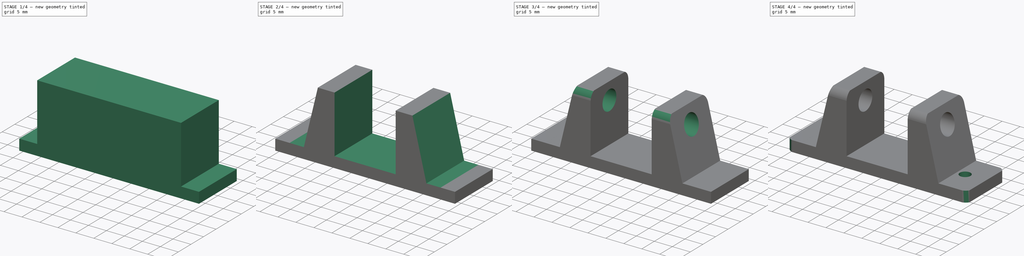
[diagram: build sequence overview — one tinted view per stage of 4, left to right]
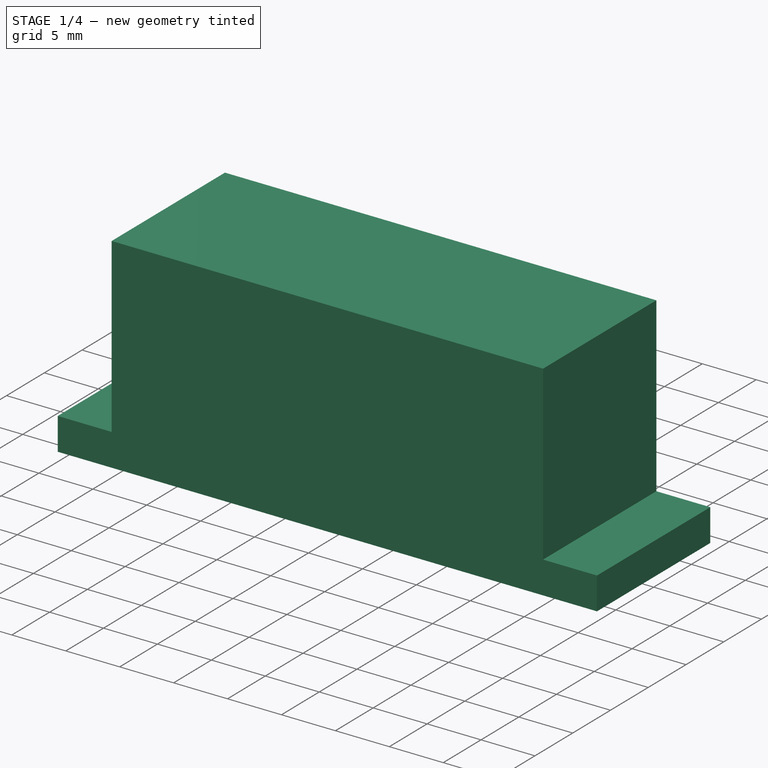
[diagram: stage 1 of 4 — iso view after this stage's code; geometry added in this stage tinted green]
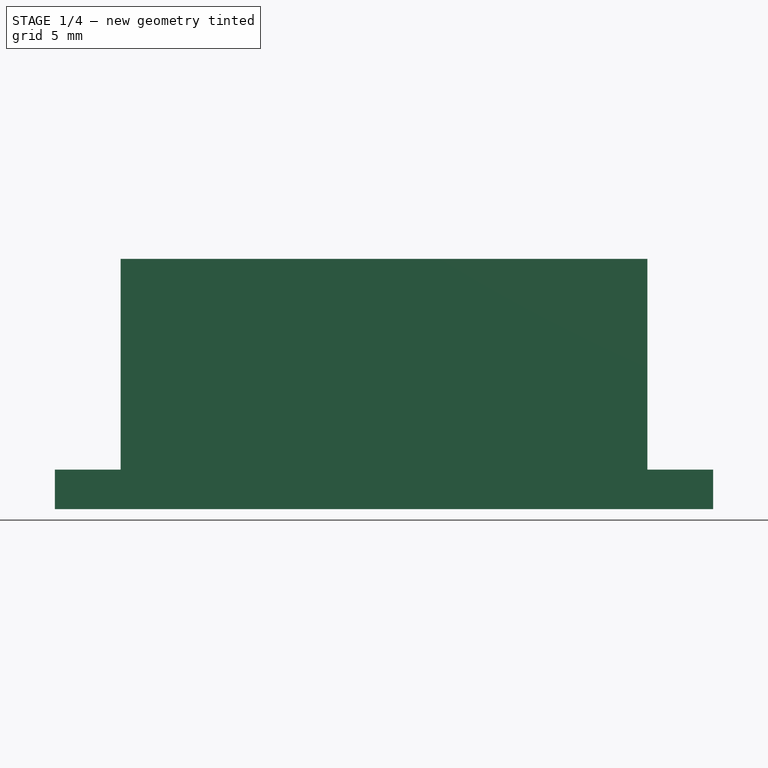
[diagram: stage 1 of 4 — front view after this stage's code; geometry added in this stage tinted green]
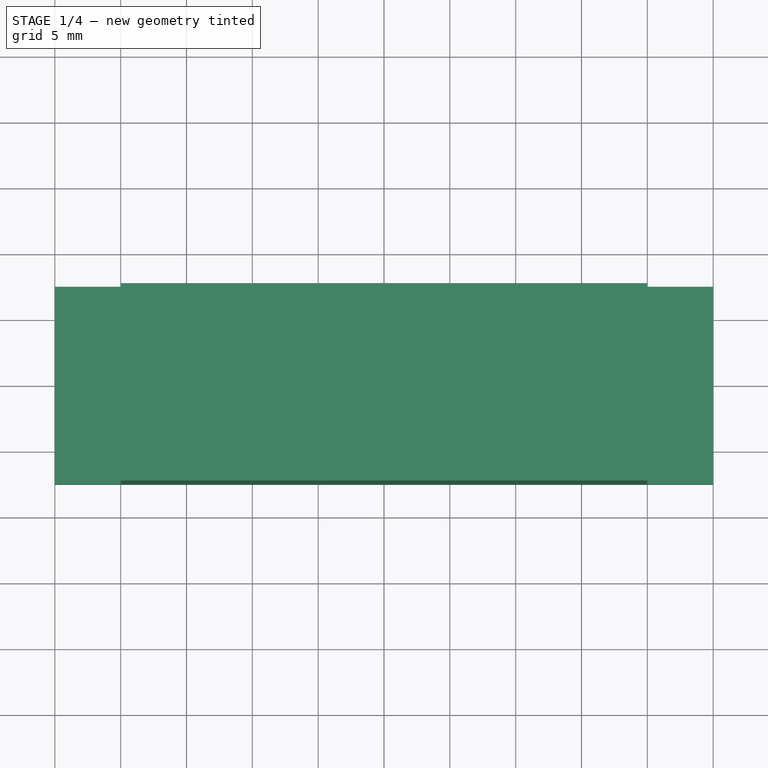
[diagram: stage 1 of 4 — top view after this stage's code; geometry added in this stage tinted green]
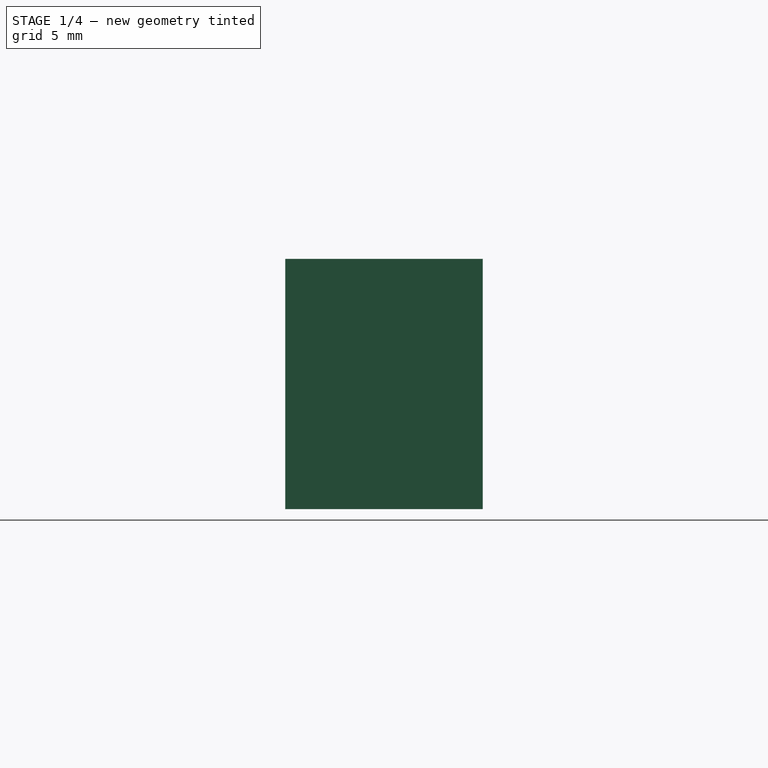
[diagram: stage 1 of 4 — right view after this stage's code; geometry added in this stage tinted green]
FCSTD DOCUMENT  (FreeCAD 1.0R39109 (Git))
Label: Soporte polea
License: All rights reserved
LicenseURL: https://en.wikipedia.org/wiki/All_rights_reserved
objects: Sketcher::SketchObject×11, PartDesign::Pocket×5, PartDesign::Pad×2, PartDesign::Hole×2, PartDesign::Body×1
note: 50 computed .brp shape members not serialized (recipe doc carries the construction recipe); baked Part::Feature solids carry a one-line shape summary decoded from their .brp

FEATURE [Sketcher::SketchObject] Sketch
  ArcFitTolerance = 1e-06
  AttachmentSupport = -> [XY_Plane]
  FullyConstrained = true
  MakeInternals = false
  MapMode = 5
  sketch-geometry (5):
    g0: LineSegment StartX=-25 StartY=-7.5 StartZ=0 EndX=25 EndY=-7.5 EndZ=0
    g1: LineSegment StartX=25 StartY=-7.5 StartZ=0 EndX=25 EndY=7.5 EndZ=0
    g2: LineSegment StartX=25 StartY=7.5 StartZ=0 EndX=-25 EndY=7.5 EndZ=0
    g3: LineSegment StartX=-25 StartY=7.5 StartZ=0 EndX=-25 EndY=-7.5 EndZ=0
    g4: GeomPoint [constr] X=0 Y=0 Z=0
  constraints (12):
    c: Coincident(g0,g1)
    c: Coincident(g1,g2)
    c: Coincident(g2,g3)
    c: Coincident(g3,g0)
    c: Horizontal(g0)
    c: Horizontal(g2)
    c: Vertical(g1)
    c: Vertical(g3)
    c: Symmetric(g2,g0,g4)
    c: Distance(g1,g3) = 50
    c: Distance(g0,g2) = 15
    c: Coincident(g4,g-1)
FEATURE [PartDesign::Pad] Pad
  Direction = (0,0,1)
  Length = 3
  Length2 = 10
  Profile = -> Sketch
  ReferenceAxis = -> Sketch [N_Axis]
  Refine = true
  Suppressed = false
  Type = 0
FEATURE [Sketcher::SketchObject] Sketch001
  ArcFitTolerance = 1e-06
  AttachmentSupport = -> [Pad]
  FullyConstrained = true
  MakeInternals = false
  MapMode = 5
  Placement = pos=(0,0,3) rot=(0,0,1;0rad)
  sketch-geometry (5):
    g0: LineSegment StartX=-20 StartY=-7.5 StartZ=0 EndX=20 EndY=-7.5 EndZ=0
    g1: LineSegment StartX=20 StartY=-7.5 StartZ=0 EndX=20 EndY=7.5 EndZ=0
    g2: LineSegment StartX=20 StartY=7.5 StartZ=0 EndX=-20 EndY=7.5 EndZ=0
    g3: LineSegment StartX=-20 StartY=7.5 StartZ=0 EndX=-20 EndY=-7.5 EndZ=0
    g4: GeomPoint [constr] X=0 Y=0 Z=0
  constraints (12):
    c: Coincident(g0,g1)
    c: Coincident(g1,g2)
    c: Coincident(g2,g3)
    c: Coincident(g3,g0)
    c: Horizontal(g0)
    c: Horizontal(g2)
    c: Vertical(g1)
    c: Vertical(g3)
    c: Symmetric(g2,g0,g4)
    c: Distance(g1,g3) = 40
    c: Distance(g0,g2) = 15
    c: Coincident(g4,g-1)
FEATURE [PartDesign::Pad] Pad001
  BaseFeature = -> Pad
  Direction = (0,0,1)
  Length = 16
  Length2 = 10
  Profile = -> Sketch001
  ReferenceAxis = -> Sketch001 [N_Axis]
  Refine = true
  Suppressed = false
  Type = 0
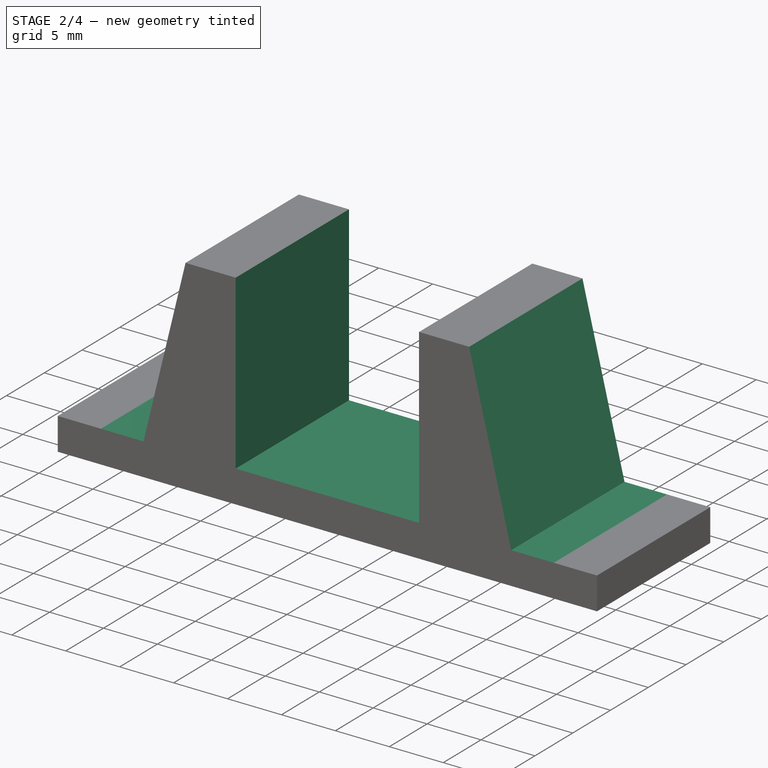
[diagram: stage 2 of 4 — iso view after this stage's code; geometry added in this stage tinted green]
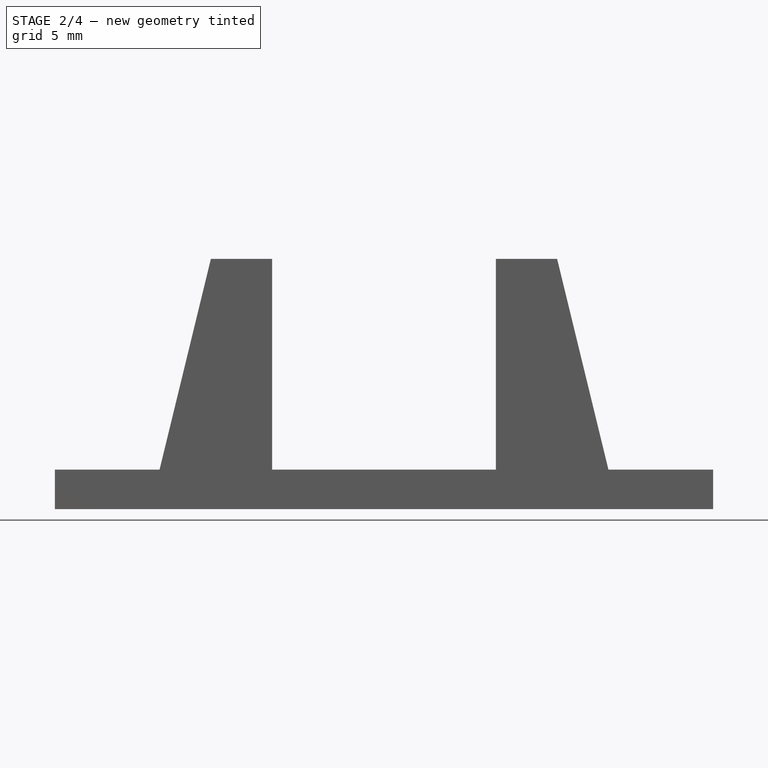
[diagram: stage 2 of 4 — front view after this stage's code; geometry added in this stage tinted green]
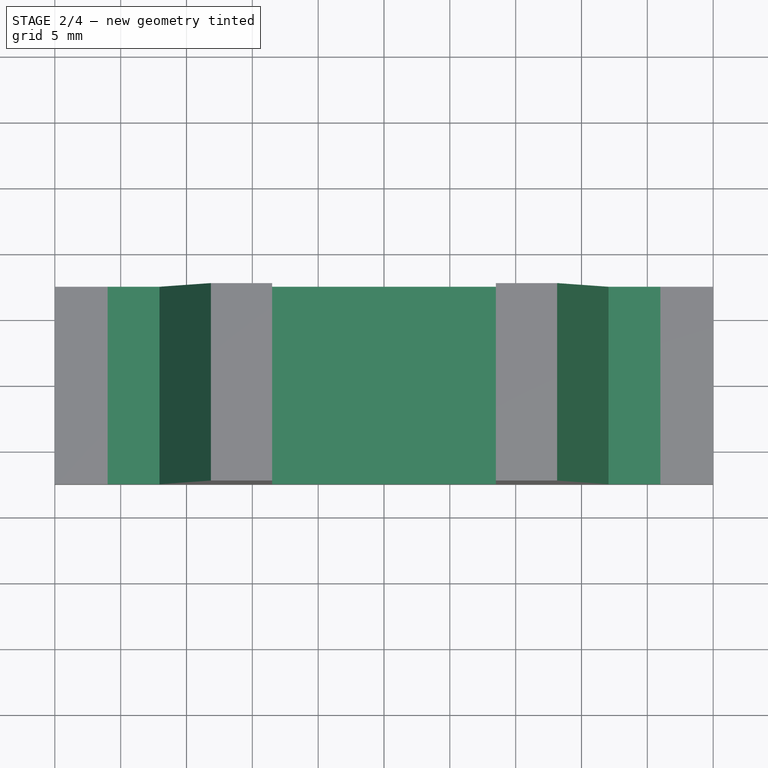
[diagram: stage 2 of 4 — top view after this stage's code; geometry added in this stage tinted green]
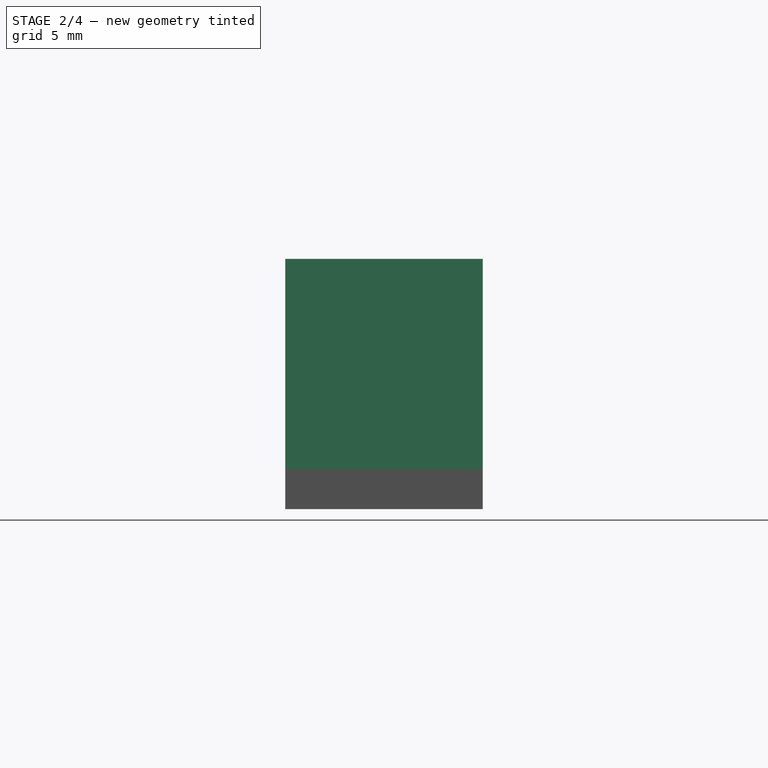
[diagram: stage 2 of 4 — right view after this stage's code; geometry added in this stage tinted green]
FEATURE [Sketcher::SketchObject] Sketch002
  ArcFitTolerance = 1e-06
  AttachmentSupport = -> [Pad001]
  FullyConstrained = false
  MakeInternals = false
  MapMode = 5
  Placement = pos=(0,-7.5,0) rot=(1,0,0;1.5708rad)
  sketch-geometry (8):
    g0: LineSegment StartX=-17.0463 StartY=2.99842 StartZ=0 EndX=-13.1473 EndY=19.0072 EndZ=0
    g1: LineSegment StartX=-13.1473 StartY=19.0072 StartZ=0 EndX=-20.9911 EndY=19.3283 EndZ=0
    g2: LineSegment StartX=-20.9911 StartY=19.3283 StartZ=0 EndX=-20.9911 EndY=2.99842 EndZ=0
    g3: LineSegment StartX=-20.9911 StartY=2.99842 StartZ=0 EndX=-17.0463 EndY=2.99842 EndZ=0
    g4: LineSegment StartX=17.0463 StartY=2.99842 StartZ=0 EndX=13.1473 EndY=19.0072 EndZ=0
    g5: LineSegment StartX=13.1473 StartY=19.0072 StartZ=0 EndX=20.9911 EndY=19.3283 EndZ=0
    g6: LineSegment StartX=20.9911 StartY=19.3283 StartZ=0 EndX=20.9911 EndY=2.99842 EndZ=0
    g7: LineSegment StartX=20.9911 StartY=2.99842 StartZ=0 EndX=17.0463 EndY=2.99842 EndZ=0
  constraints (12):
    c: Coincident(g1,g0)
    c: Coincident(g2,g1)
    c: Vertical(g2)
    c: Coincident(g3,g2)
    c: Coincident(g3,g0)
    c: Horizontal(g3)
    c: Coincident(g5,g4)
    c: Coincident(g6,g5)
    c: Vertical(g6)
    c: Coincident(g7,g6)
    c: Coincident(g7,g4)
    c: Horizontal(g7)
FEATURE [Sketcher::SketchObject] Sketch004
  ArcFitTolerance = 1e-06
  FullyConstrained = false
  MakeInternals = false
  MapMode = 5
  Placement = pos=(-8.5,0,0) rot=(0.57735,0.57735,0.57735;2.0944rad)
  sketch-geometry (1):
    g0: Circle CenterX=0 CenterY=14.2311 CenterZ=0 NormalX=0 NormalY=0 NormalZ=1 AngleXU=0 Radius=2.65
  constraints (2):
    c: Diameter(g0) = 5.3
    c: PointOnObject(g0,g-2)
FEATURE [Sketcher::SketchObject] Sketch005
  ArcFitTolerance = 1e-06
  FullyConstrained = false
  MakeInternals = false
  MapMode = 5
  Placement = pos=(8.5,0,0) rot=(0.57735,-0.57735,-0.57735;2.0944rad)
  sketch-geometry (8):
    g0: ArcOfCircle CenterX=-4.9741 CenterY=16.7791 CenterZ=0 NormalX=0 NormalY=0 NormalZ=1 AngleXU=0 Radius=2.50683 StartAngle=1.738 EndAngle=3.05551
    g1: LineSegment StartX=-7.47165 StartY=16.9946 StartZ=0 EndX=-7.67428 EndY=16.9397 EndZ=0
    g2: LineSegment StartX=-7.67428 StartY=16.9397 StartZ=0 EndX=-7.67428 EndY=19.251 EndZ=0
    g3: LineSegment StartX=-5.39131 StartY=19.251 StartZ=0 EndX=-7.67428 EndY=19.251 EndZ=0
    g4: ArcOfCircle CenterX=4.9741 CenterY=16.7791 CenterZ=0 NormalX=0 NormalY=0 NormalZ=1 AngleXU=0 Radius=2.50684 StartAngle=0.0860784 EndAngle=1.40359
    g5: LineSegment StartX=7.47165 StartY=16.9946 StartZ=0 EndX=7.67428 EndY=16.9397 EndZ=0
    g6: LineSegment StartX=7.67428 StartY=16.9397 StartZ=0 EndX=7.67428 EndY=19.251 EndZ=0
    g7: LineSegment StartX=5.39131 StartY=19.251 StartZ=0 EndX=7.67428 EndY=19.251 EndZ=0
  constraints (12):
    c: Coincident(g1,g0)
    c: Coincident(g2,g1)
    c: Vertical(g2)
    c: Coincident(g3,g0)
    c: Coincident(g3,g2)
    c: Horizontal(g3)
    c: Coincident(g5,g4)
    c: Coincident(g6,g5)
    c: Vertical(g6)
    c: Coincident(g7,g4)
    c: Coincident(g7,g6)
    c: Horizontal(g7)
FEATURE [Sketcher::SketchObject] Sketch006
  ArcFitTolerance = 1e-06
  FullyConstrained = false
  MakeInternals = false
  MapMode = 5
  Placement = pos=(0,0,3) rot=(0,0,1;0rad)
  sketch-geometry (12):
    g0: ArcOfCircle CenterX=-22.8745 CenterY=5.19512 CenterZ=0 NormalX=0 NormalY=0 NormalZ=1 AngleXU=0 Radius=2.48469 StartAngle=1.66986 EndAngle=2.84916
    g1: LineSegment StartX=-25.2537 StartY=5.91142 StartZ=0 EndX=-25.2537 EndY=7.71409 EndZ=0
    g2: LineSegment StartX=-25.2537 StartY=7.71409 StartZ=0 EndX=-23.1203 EndY=7.66762 EndZ=0
    g3: ArcOfCircle CenterX=-22.9188 CenterY=-5.05194 CenterZ=0 NormalX=0 NormalY=0 NormalZ=1 AngleXU=0 Radius=2.56585 StartAngle=3.42755 EndAngle=4.58181
    g4: LineSegment StartX=-25.3805 StartY=-5.7757 StartZ=0 EndX=-25.3805 EndY=-7.58431 EndZ=0
    g5: LineSegment StartX=-25.3805 StartY=-7.58431 StartZ=0 EndX=-23.2529 EndY=-7.59594 EndZ=0
    g6: ArcOfCircle CenterX=22.8745 CenterY=5.19512 CenterZ=0 NormalX=0 NormalY=0 NormalZ=1 AngleXU=0 Radius=2.48469 StartAngle=0.292436 EndAngle=1.47174
    g7: LineSegment StartX=25.2537 StartY=5.91142 StartZ=0 EndX=25.2537 EndY=7.71409 EndZ=0
    g8: LineSegment StartX=25.2537 StartY=7.71409 StartZ=0 EndX=23.1203 EndY=7.66762 EndZ=0
    g9: ArcOfCircle CenterX=22.9188 CenterY=-5.05194 CenterZ=0 NormalX=0 NormalY=0 NormalZ=1 AngleXU=0 Radius=2.56585 StartAngle=4.84297 EndAngle=5.99723
    g10: LineSegment StartX=25.3805 StartY=-5.7757 StartZ=0 EndX=25.3805 EndY=-7.58431 EndZ=0
    g11: LineSegment StartX=25.3805 StartY=-7.58431 StartZ=0 EndX=23.2529 EndY=-7.59594 EndZ=0
  constraints (16):
    c: Coincident(g1,g0)
    c: Vertical(g1)
    c: Coincident(g2,g1)
    c: Coincident(g2,g0)
    c: Coincident(g4,g3)
    c: Vertical(g4)
    c: Coincident(g5,g4)
    c: Coincident(g5,g3)
    c: Coincident(g7,g6)
    c: Vertical(g7)
    c: Coincident(g8,g7)
    c: Coincident(g8,g6)
    c: Coincident(g10,g9)
    c: Vertical(g10)
    c: Coincident(g11,g10)
    c: Coincident(g11,g9)
FEATURE [Sketcher::SketchObject] Sketch007
  ArcFitTolerance = 1e-06
  FullyConstrained = false
  MakeInternals = false
  MapMode = 5
  Placement = pos=(0,0,3) rot=(0,0,1;0rad)
  sketch-geometry (2):
    g0: Circle CenterX=-19.2322 CenterY=0 CenterZ=0 NormalX=0 NormalY=0 NormalZ=1 AngleXU=0 Radius=1.5
    g1: Circle CenterX=19.2322 CenterY=0 CenterZ=0 NormalX=0 NormalY=0 NormalZ=1 AngleXU=0 Radius=1.5
  constraints (3):
    c: Diameter(g0) = 3
    c: PointOnObject(g0,g-1)
    c: Diameter(g1) = 3
FEATURE [Sketcher::SketchObject] Sketch008
  ArcFitTolerance = 1e-06
  FullyConstrained = false
  MakeInternals = false
  MapMode = 5
  Placement = pos=(0,0,13) rot=(0,0,1;0rad)
  sketch-geometry (2):
    g0: Circle CenterX=-11.2701 CenterY=0 CenterZ=0 NormalX=0 NormalY=0 NormalZ=1 AngleXU=0 Radius=1.5
    g1: Circle CenterX=11.3804 CenterY=0 CenterZ=0 NormalX=0 NormalY=0 NormalZ=1 AngleXU=0 Radius=1.5
  constraints (4):
    c: Diameter(g0) = 3
    c: PointOnObject(g0,g-1)
    c: Diameter(g1) = 3
    c: PointOnObject(g1,g-1)
FEATURE [Sketcher::SketchObject] Sketch009
  ArcFitTolerance = 1e-06
  FullyConstrained = true
  MakeInternals = false
  MapMode = 5
  Placement = pos=(0,-7.5,0) rot=(1,0,0;1.5708rad)
FEATURE [PartDesign::Pocket] Pocket
  BaseFeature = -> Pad001
  Direction = (0,1,-2e-16)
  Length = 30
  Length2 = 5
  Profile = -> Sketch002
  ReferenceAxis = -> Sketch002 [N_Axis]
  Refine = true
  Suppressed = false
  Type = 0
FEATURE [Sketcher::SketchObject] Sketch010
  ArcFitTolerance = 1e-06
  AttachmentSupport = -> [Pocket]
  FullyConstrained = true
  MakeInternals = false
  MapMode = 5
  Placement = pos=(0,0,19) rot=(0,0,1;0rad)
FEATURE [Sketcher::SketchObject] Sketch011
  ArcFitTolerance = 1e-06
  AttachmentSupport = -> [Pocket]
  FullyConstrained = true
  MakeInternals = false
  MapMode = 5
  Placement = pos=(0,0,19) rot=(0,0,1;0rad)
  sketch-geometry (5):
    g0: LineSegment StartX=-8.5 StartY=-7.5 StartZ=0 EndX=8.5 EndY=-7.5 EndZ=0
    g1: LineSegment StartX=8.5 StartY=-7.5 StartZ=0 EndX=8.5 EndY=7.5 EndZ=0
    g2: LineSegment StartX=8.5 StartY=7.5 StartZ=0 EndX=-8.5 EndY=7.5 EndZ=0
    g3: LineSegment StartX=-8.5 StartY=7.5 StartZ=0 EndX=-8.5 EndY=-7.5 EndZ=0
    g4: GeomPoint [constr] X=0 Y=0 Z=0
  constraints (12):
    c: Coincident(g0,g1)
    c: Coincident(g1,g2)
    c: Coincident(g2,g3)
    c: Coincident(g3,g0)
    c: Horizontal(g0)
    c: Horizontal(g2)
    c: Vertical(g1)
    c: Vertical(g3)
    c: Symmetric(g2,g0,g4)
    c: Distance(g1,g3) = 17
    c: Distance(g0,g2) = 15
    c: Coincident(g4,g-1)
FEATURE [PartDesign::Pocket] Pocket001
  BaseFeature = -> Pocket
  Direction = (0,0,-1)
  Length = 16
  Length2 = 5
  Profile = -> Sketch011
  ReferenceAxis = -> Sketch011 [N_Axis]
  Refine = true
  Suppressed = false
  Type = 0
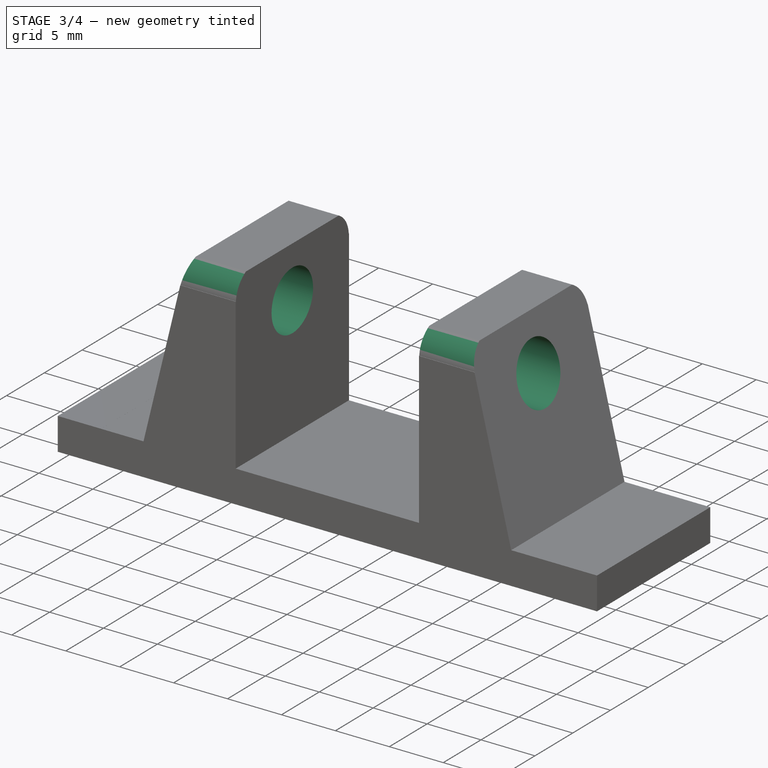
[diagram: stage 3 of 4 — iso view after this stage's code; geometry added in this stage tinted green]
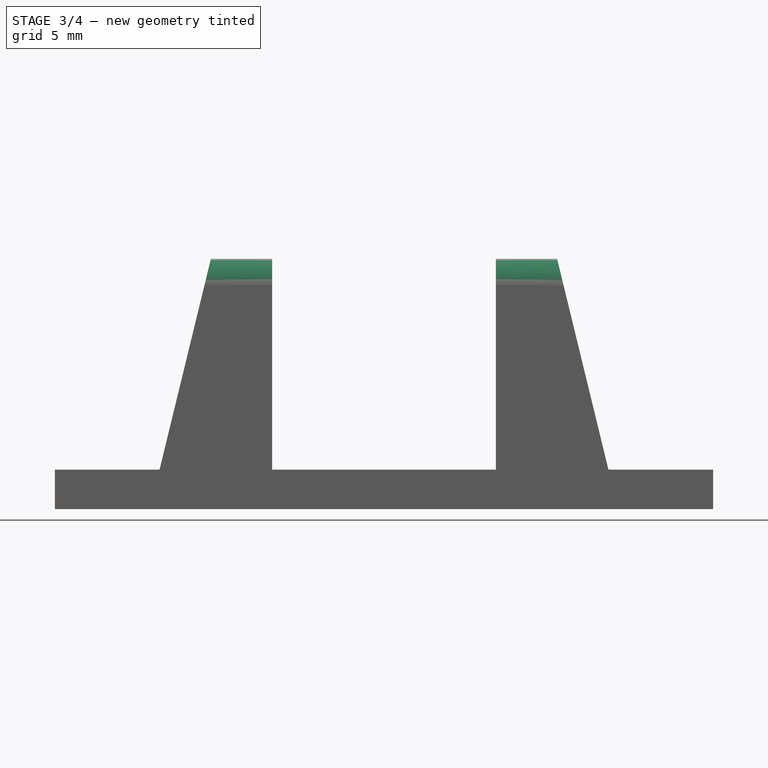
[diagram: stage 3 of 4 — front view after this stage's code; geometry added in this stage tinted green]
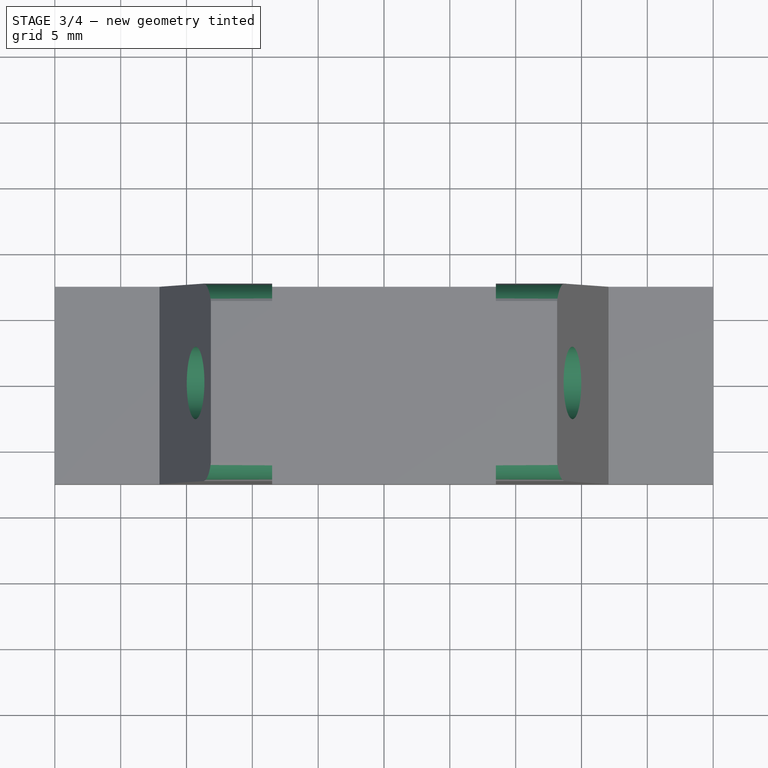
[diagram: stage 3 of 4 — top view after this stage's code; geometry added in this stage tinted green]
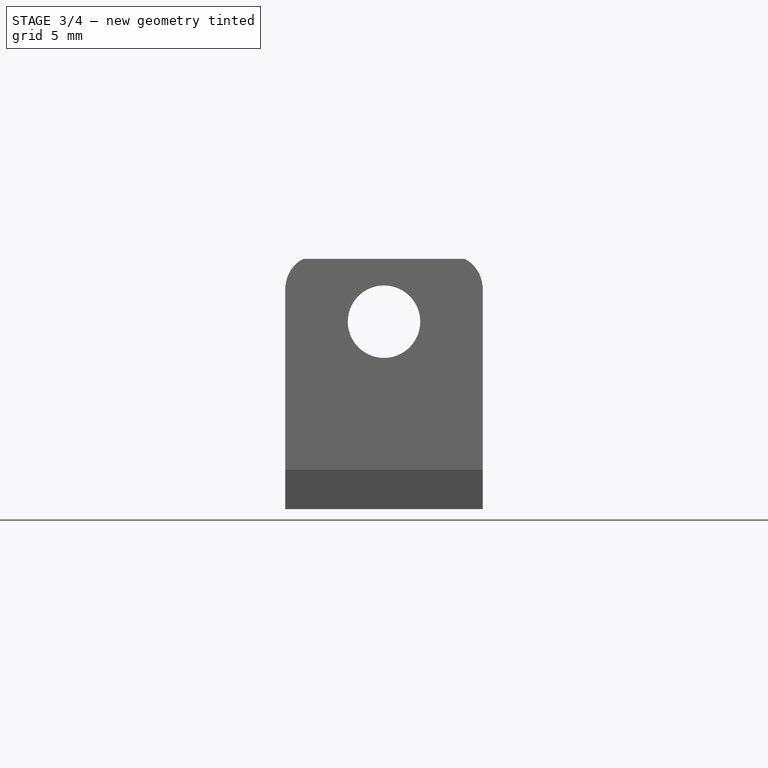
[diagram: stage 3 of 4 — right view after this stage's code; geometry added in this stage tinted green]
FEATURE [PartDesign::Hole] Hole
  BaseFeature = -> Pocket001
  CustomThreadClearance = 0
  Depth = 25
  DepthType = 0
  Diameter = 5.5
  DrillForDepth = false
  DrillPoint = 1
  DrillPointAngle = 118
  HoleCutCountersinkAngle = 90
  HoleCutCustomValues = false
  HoleCutDepth = 0
  HoleCutDiameter = 6.1
  HoleCutType = 0
  ModelThread = false
  Profile = -> Sketch004
  Refine = true
  Suppressed = false
  Tapered = false
  TaperedAngle = 90
  ThreadClass = 0
  ThreadDepth = 25
  ThreadDepthType = 0
  ThreadDirection = 0
  ThreadFit = 0
  ThreadSize = 13
  ThreadType = 1
  Threaded = false
  UseCustomThreadClearance = false
FEATURE [PartDesign::Hole] Hole001
  BaseFeature = -> Hole
  CustomThreadClearance = 0
  Depth = 25
  DepthType = 0
  Diameter = 5.5
  DrillForDepth = false
  DrillPoint = 1
  DrillPointAngle = 118
  HoleCutCountersinkAngle = 90
  HoleCutCustomValues = false
  HoleCutDepth = 0
  HoleCutDiameter = 6.1
  HoleCutType = 0
  ModelThread = false
  Profile = -> Sketch004
  Refine = true
  Reversed = true
  Suppressed = false
  Tapered = false
  TaperedAngle = 90
  ThreadClass = 0
  ThreadDepth = 25
  ThreadDepthType = 0
  ThreadDirection = 0
  ThreadFit = 0
  ThreadSize = 13
  ThreadType = 1
  Threaded = false
  UseCustomThreadClearance = false
FEATURE [PartDesign::Pocket] Pocket002
  BaseFeature = -> Hole001
  Direction = (1,-1e-16,1e-16)
  Length = 70
  Length2 = 5
  Midplane = true
  Profile = -> Sketch005
  ReferenceAxis = -> Sketch005 [N_Axis]
  Refine = true
  Suppressed = false
  Type = 0
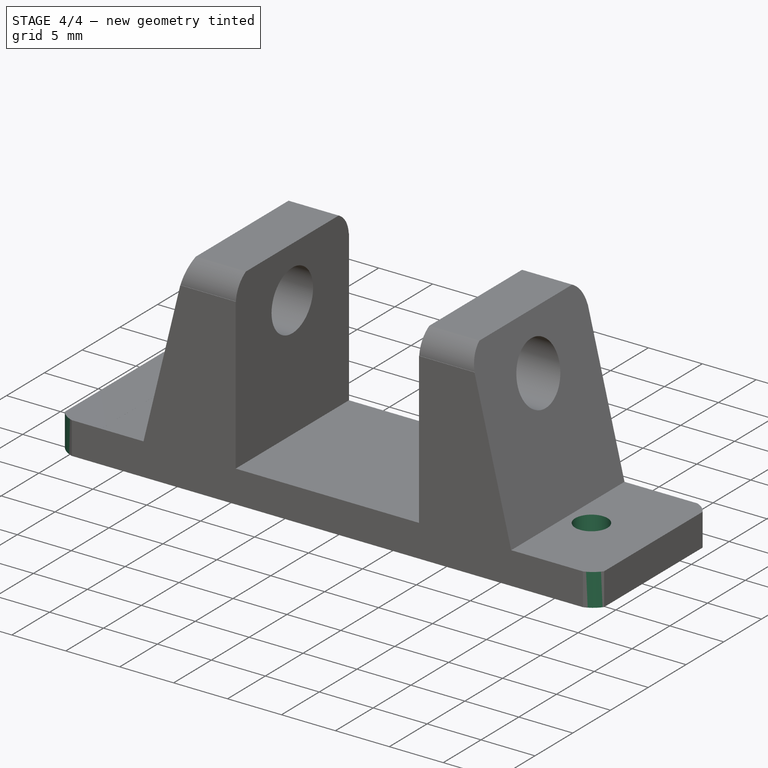
[diagram: stage 4 of 4 — iso view after this stage's code; geometry added in this stage tinted green]
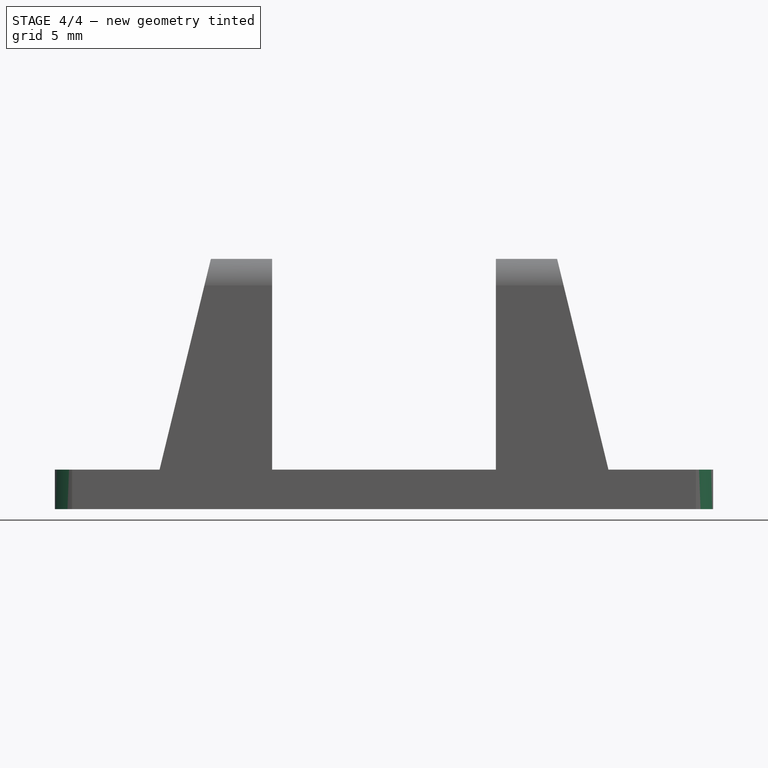
[diagram: stage 4 of 4 — front view after this stage's code; geometry added in this stage tinted green]
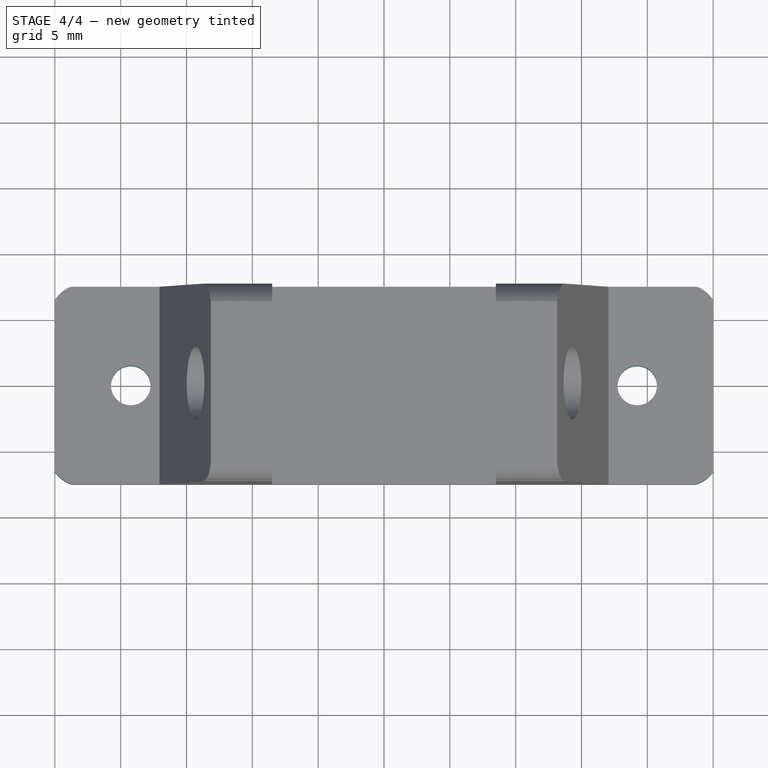
[diagram: stage 4 of 4 — top view after this stage's code; geometry added in this stage tinted green]
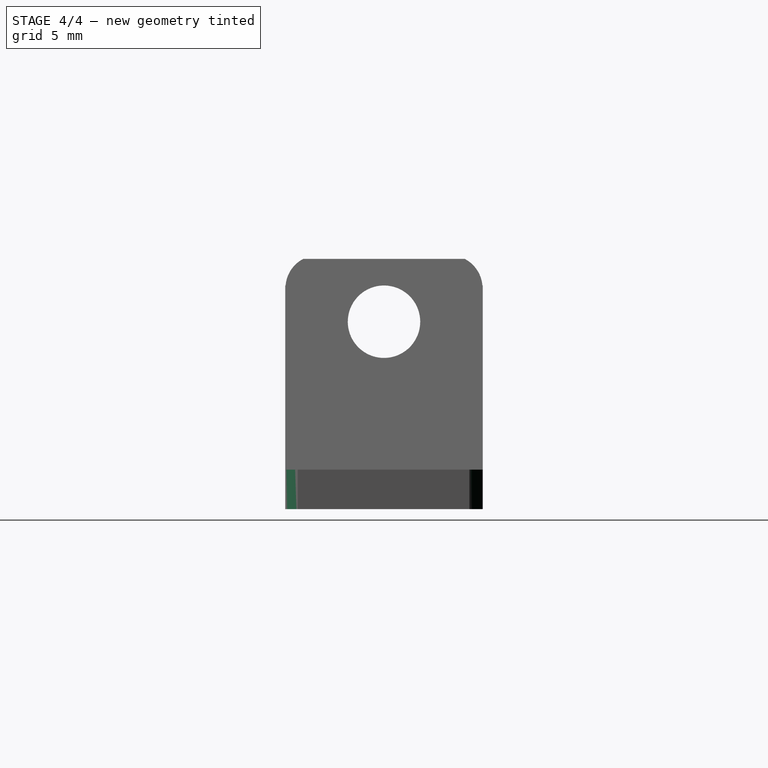
[diagram: stage 4 of 4 — right view after this stage's code; geometry added in this stage tinted green]
FEATURE [PartDesign::Pocket] Pocket003
  BaseFeature = -> Pocket002
  Direction = (0,0,-1)
  Length = 5
  Length2 = 5
  Profile = -> Sketch006
  ReferenceAxis = -> Sketch006 [N_Axis]
  Refine = true
  Suppressed = false
  Type = 0
FEATURE [PartDesign::Pocket] Pocket004
  BaseFeature = -> Pocket003
  Direction = (0,0,-1)
  Length = 10
  Length2 = 5
  Profile = -> Sketch007
  ReferenceAxis = -> Sketch007 [N_Axis]
  Refine = true
  Suppressed = false
  Type = 0
FEATURE [PartDesign::Body] Body
  AllowCompound = false
  Group = -> [Sketch,Pad,Sketch001,Pad001,Sketch002,Sketch004,Sketch005,Sketch006,Sketch007,Sketch008,Sketch009,Pocket,Sketch010,Sketch011,Pocket001,Hole,Hole001,Pocket002,Pocket003,Pocket004]
  Origin = -> Origin
  Tip = -> Pocket004
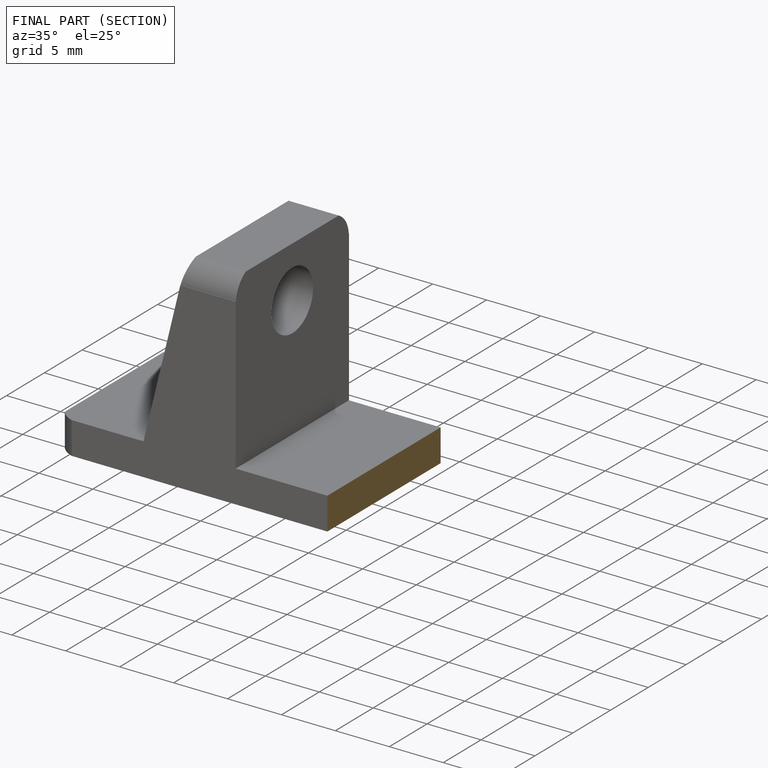
[diagram: finished part — half-section view (interior)]
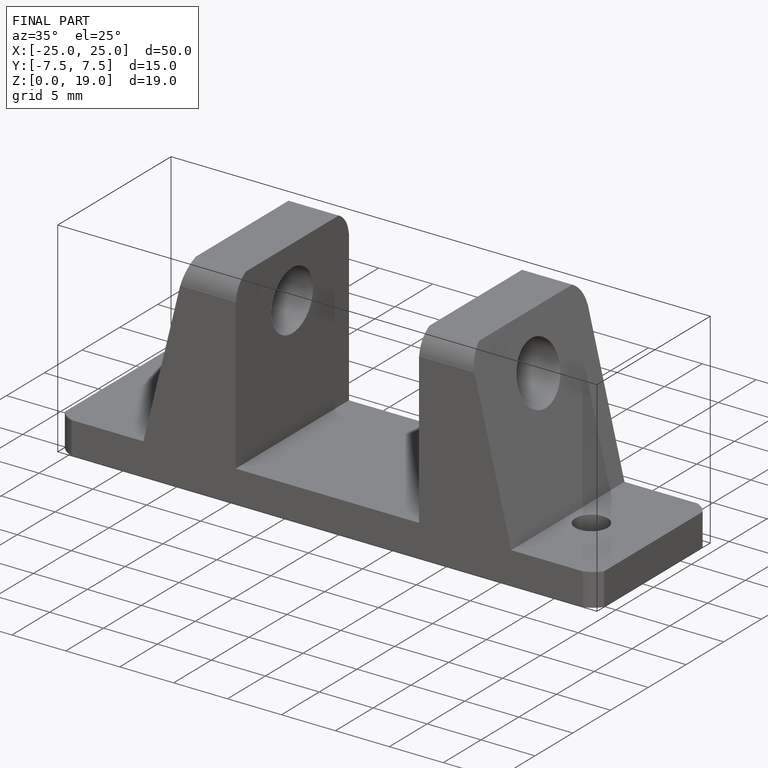
[diagram: finished part — iso view with bounding-box wireframe]
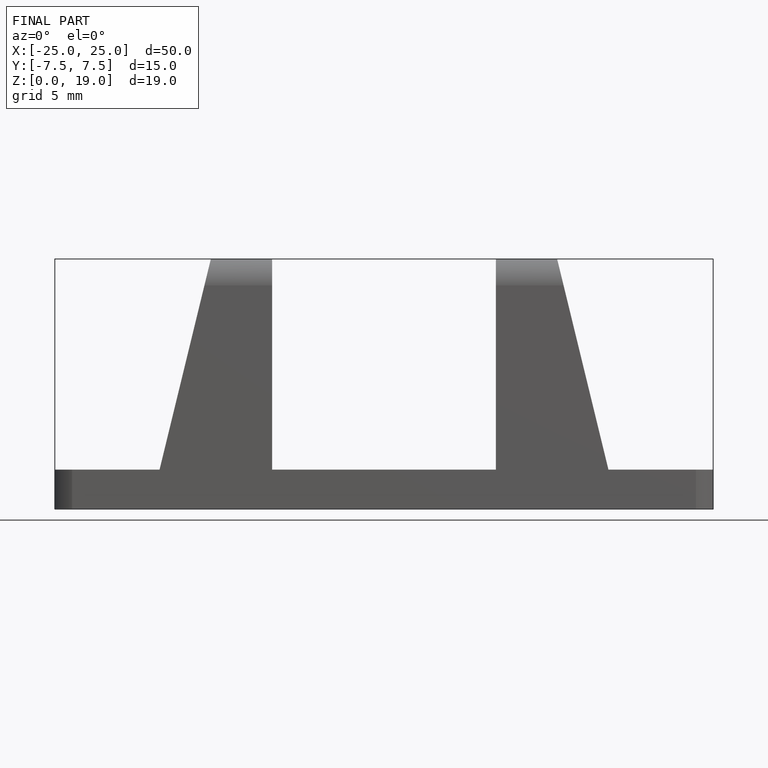
[diagram: finished part — front view with bounding-box wireframe]
